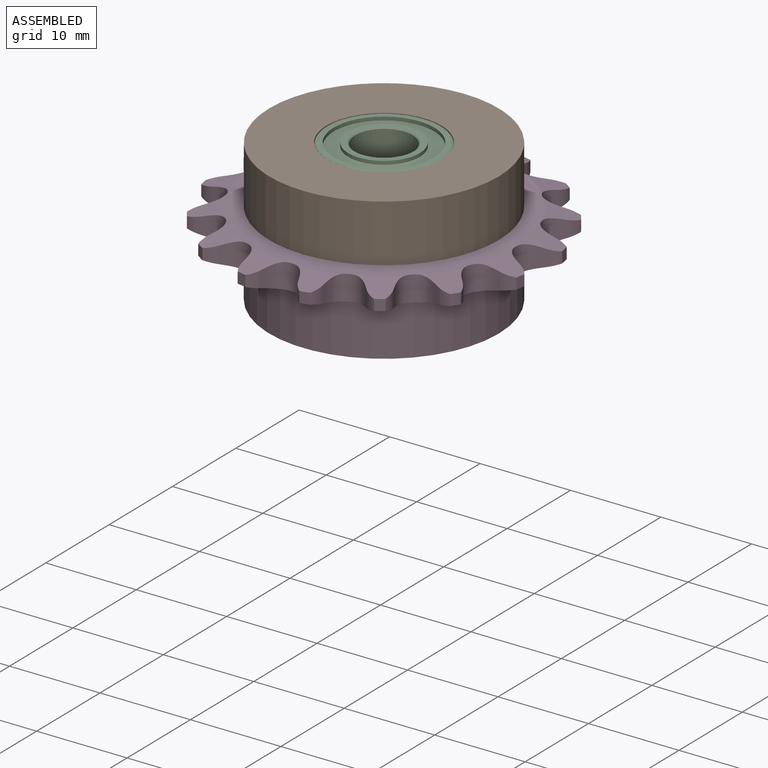
[diagram: assembled view]
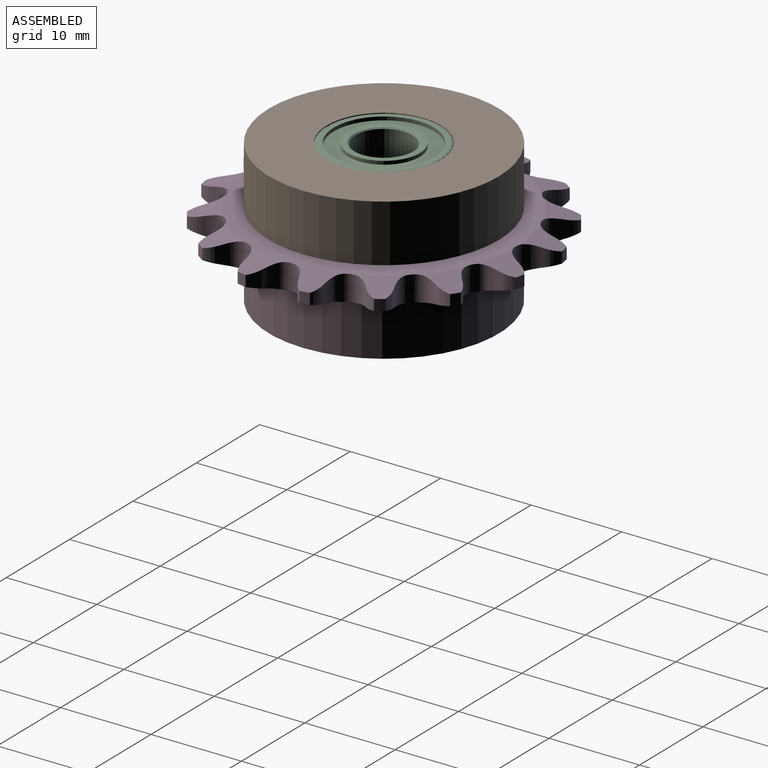
[diagram: assembled view, second angle]
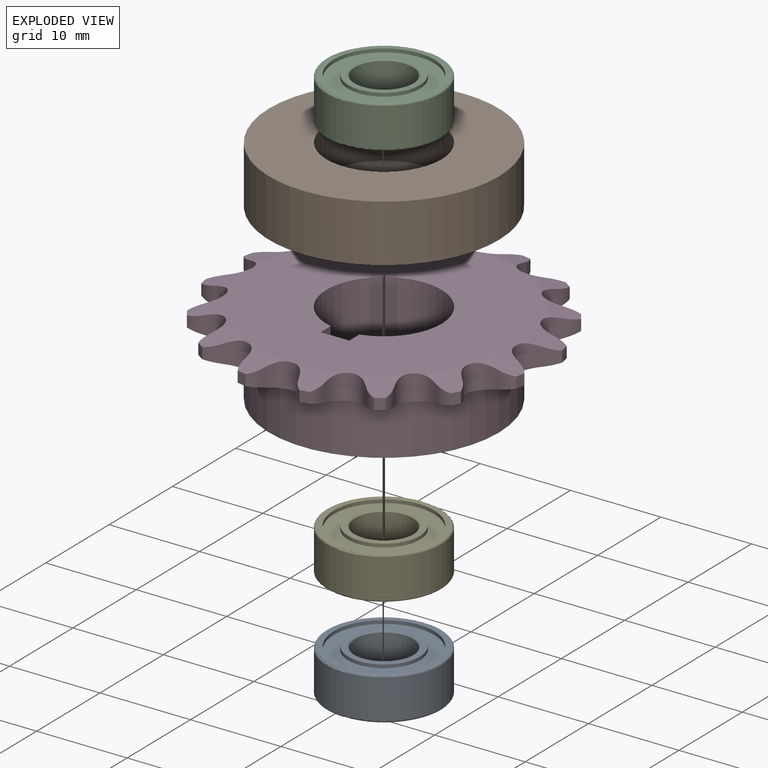
[diagram: exploded view]
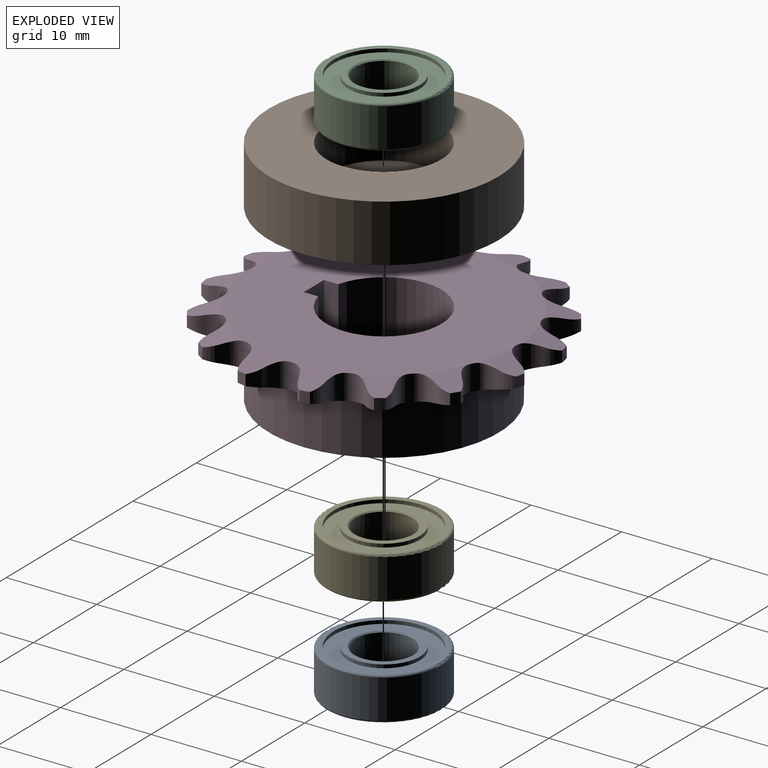
[diagram: exploded view, second angle]
ASSEMBLY  parts=5 mates=4
PART A: 16 faces, bbox 4.8x13.7x13.7 mm
  f0: cone r=3.3mm half-angle=45deg, axis (1,0,0), area 3.7mm2, adj f9,f11
  f1: cone r=3.17mm half-angle=45deg, axis (-1,0,0), area 3.7mm2, adj f9,f10
  f2: torus R=6.11mm, axis (-1,0,0), area 14.7mm2, adj f6,f13
  f3: torus R=6.11mm, axis (1,0,0), area 14.7mm2, adj f6,f14
  f4: cylinder r=3.97mm len=7.94mm, axis (-1,0,0), area 9.5mm2, adj f10,f15
  f5: cylinder r=5.56mm len=11.11mm, axis (-1,0,0), area 13.3mm2, adj f14,f15
  f6: cylinder r=6.35mm len=12.7mm, axis (-1,0,0), area 171mm2, adj f2,f3
  f7: cylinder r=5.56mm len=11.11mm, axis (-1,0,0), area 13.3mm2, adj f12,f13
  f8: cylinder r=3.97mm len=7.94mm, axis (-1,0,0), area 9.5mm2, adj f11,f12
  f9: cylinder r=3.17mm len=6.35mm, axis (-1,0,0), area 89.9mm2, adj f0,f1
  f10: plane 7.94x7.94mm, normal (-1,0,0), area 15.2mm2, adj f1,f4
  f11: plane 7.94x7.94mm, normal (1,0,0), area 15.2mm2, adj f0,f8
  f12: plane 11.11x11.11mm, normal (1,0,0), area 47.5mm2, adj f7,f8
  f13: plane 12.22x12.22mm, normal (1,0,0), area 20.4mm2, adj f2,f7
  f14: plane 12.22x12.22mm, normal (-1,0,0), area 20.4mm2, adj f3,f5
  f15: plane 11.11x11.11mm, normal (-1,0,0), area 47.5mm2, adj f4,f5
PART B: 6 faces, bbox 25.4x25.4x6.4 mm
  f0: cylinder r=3.57mm len=7.14mm, axis (0,0,1), area 35.6mm2, adj f3,f5
  f1: cylinder r=12.7mm len=25.4mm, axis (0,0,-1), area 506.7mm2, adj f2,f3
  f2: plane 25.4x25.4mm, normal (0,0,1), area 380mm2, adj f1,f4
  f3: plane 25.4x25.4mm, normal (0,0,-1), area 466.7mm2, adj f0,f1
  f4: cylinder r=6.35mm len=12.7mm, axis (0,0,1), area 190mm2, adj f2,f5
  f5: plane 12.7x12.7mm, normal (0,0,1), area 86.7mm2, adj f0,f4
PART C: same geometry as A
PART D: 168 faces, bbox 35.7x35.7x9.2 mm
  f0: cylinder r=6.36mm len=12.73mm, axis (0,0,-1), area 337.3mm2, adj f9,f10,f165,f166
  f1: cylinder r=12.7mm len=25.4mm, axis (0,0,-1), area 509.2mm2, adj f10,f11
  f2: cylinder r=1.74mm len=2.79mm, axis (0,0,-1), area 8.9mm2, adj f9,f11,f12,f15,f19,f22,f152,f157
  f3: cylinder r=1.74mm len=2.79mm, axis (0,0,-1), area 8.9mm2, adj f9,f11,f15,f18,f22,f25,f146,f151
  f4: cylinder r=1.74mm len=2.83mm, axis (0,0,-1), area 8.9mm2, adj f9,f11,f18,f21,f25,f28,f140,f145
  f5: cylinder r=1.74mm len=2.79mm, axis (0,0,-1), area 8.9mm2, adj f9,f11,f21,f24,f28,f31,f134,f139
  f6: cylinder r=1.74mm len=2.79mm, axis (0,0,-1), area 8.9mm2, adj f9,f11,f24,f27,f31,f34,f128,f133
  f7: cylinder r=2.72mm len=1.86mm, axis (0,0,-1), area 2.3mm2, adj f36,f38,f43,f104
  f8: cylinder r=2.72mm len=1.86mm, axis (0,0,-1), area 2.3mm2, adj f51,f52,f58,f75
  f9: plane 29.33x29.33mm, normal (0,0,-1), area 543.3mm2, adj f0,f2,f3,f4,f5,f6,f12,f16
  f10: plane 25.4x25.4mm, normal (0,0,1), area 374.9mm2, adj f0,f1,f165,f166,f167
  f11: plane 29.33x29.33mm, normal (0,0,1), area 168.4mm2, adj f1,f2,f3,f4,f5,f6,f13,f15
  f12: cone r=17.86mm half-angle=76deg, axis (0,0,1), area 8.4mm2, adj f2,f9,f14,f155,f156,f157,f158,f159
  f13: cone r=14.68mm half-angle=76deg, axis (0,0,-1), area 8.5mm2, adj f11,f57,f60,f61,f62,f66,f161,f162
  f14: cylinder r=17.86mm len=1.21mm, axis (0,0,-1), area 1.2mm2, adj f12,f19,f155,f160
  f15: cone r=14.68mm half-angle=76deg, axis (0,0,-1), area 8.5mm2, adj f2,f3,f11,f17,f149,f150,f151,f152
  f16: cone r=17.86mm half-angle=76deg, axis (0,0,1), area 8.5mm2, adj f9,f57,f60,f61,f62,f66,f161,f162
  f17: cylinder r=17.86mm len=1.21mm, axis (0,0,-1), area 1.2mm2, adj f15,f22,f149,f154
  f18: cone r=17.86mm half-angle=76deg, axis (0,0,1), area 8.5mm2, adj f3,f4,f9,f20,f143,f144,f145,f146
  f19: cone r=14.68mm half-angle=76deg, axis (0,0,-1), area 8.4mm2, adj f2,f11,f14,f155,f156,f157,f158,f159
  f20: cylinder r=17.86mm len=1.21mm, axis (0,0,-1), area 1.2mm2, adj f18,f25,f143,f148
  f21: cone r=14.68mm half-angle=76deg, axis (0,0,-1), area 8.5mm2, adj f4,f5,f11,f23,f137,f138,f139,f140
  f22: cone r=17.86mm half-angle=76deg, axis (0,0,1), area 8.5mm2, adj f2,f3,f9,f17,f149,f150,f151,f152
  f23: cylinder r=17.86mm len=1.21mm, axis (0,0,-1), area 1.2mm2, adj f21,f28,f137,f142
  f24: cone r=17.86mm half-angle=76deg, axis (0,0,1), area 8.5mm2, adj f5,f6,f9,f26,f131,f132,f133,f134
  f25: cone r=14.68mm half-angle=76deg, axis (0,0,-1), area 8.5mm2, adj f3,f4,f11,f20,f143,f144,f145,f146
  f26: cylinder r=17.86mm len=1.21mm, axis (0,0,-1), area 1.2mm2, adj f24,f31,f131,f136
  f27: cone r=14.68mm half-angle=76deg, axis (0,0,-1), area 8.4mm2, adj f6,f11,f29,f124,f125,f126,f127,f128
  f28: cone r=17.86mm half-angle=76deg, axis (0,0,1), area 8.5mm2, adj f4,f5,f9,f23,f137,f138,f139,f140
  f29: cylinder r=17.86mm len=1.21mm, axis (0,0,-1), area 1.2mm2, adj f27,f34,f124,f130
  f30: cone r=17.86mm half-angle=76deg, axis (0,0,1), area 8.5mm2, adj f9,f32,f117,f118,f119,f120,f121,f122
  f31: cone r=14.68mm half-angle=76deg, axis (0,0,-1), area 8.5mm2, adj f5,f6,f11,f26,f131,f132,f133,f134
  f32: cylinder r=17.86mm len=1.21mm, axis (0,0,-1), area 1.2mm2, adj f30,f37,f117,f123
  f33: cone r=14.68mm half-angle=76deg, axis (0,0,-1), area 8.5mm2, adj f11,f35,f110,f111,f112,f113,f114,f115
  f34: cone r=17.86mm half-angle=76deg, axis (0,0,1), area 8.4mm2, adj f6,f9,f29,f124,f125,f126,f127,f128
  f35: cylinder r=17.86mm len=1.21mm, axis (0,0,-1), area 1.2mm2, adj f33,f40,f110,f116
  f36: cone r=17.86mm half-angle=76deg, axis (0,0,1), area 8.5mm2, adj f7,f9,f38,f104,f105,f106,f107,f108
  f37: cone r=14.68mm half-angle=76deg, axis (0,0,-1), area 8.5mm2, adj f11,f32,f117,f118,f119,f120,f121,f122
  f38: cylinder r=17.86mm len=1.21mm, axis (0,0,-1), area 1.2mm2, adj f7,f36,f43,f109
  f39: cone r=14.68mm half-angle=76deg, axis (0,0,-1), area 8.5mm2, adj f11,f41,f97,f98,f99,f100,f101,f102
  f40: cone r=17.86mm half-angle=76deg, axis (0,0,1), area 8.5mm2, adj f9,f35,f110,f111,f112,f113,f114,f115
  f41: cylinder r=17.86mm len=1.21mm, axis (0,0,-1), area 1.2mm2, adj f39,f46,f97,f103
  f42: cone r=17.86mm half-angle=76deg, axis (0,0,1), area 8.5mm2, adj f9,f44,f90,f91,f92,f93,f94,f95
  f43: cone r=14.68mm half-angle=76deg, axis (0,0,-1), area 8.5mm2, adj f7,f11,f38,f104,f105,f106,f107,f108
  f44: cylinder r=17.86mm len=1.21mm, axis (0,0,-1), area 1.2mm2, adj f42,f49,f90,f96
  f45: cone r=14.68mm half-angle=76deg, axis (0,0,-1), area 8.5mm2, adj f11,f47,f83,f84,f85,f86,f87,f88
  f46: cone r=17.86mm half-angle=76deg, axis (0,0,1), area 8.5mm2, adj f9,f41,f97,f98,f99,f100,f101,f102
  f47: cylinder r=17.86mm len=1.21mm, axis (0,0,-1), area 1.2mm2, adj f45,f53,f83,f89
  f48: cone r=17.86mm half-angle=76deg, axis (0,0,1), area 8.5mm2, adj f9,f50,f76,f77,f78,f79,f80,f81
  f49: cone r=14.68mm half-angle=76deg, axis (0,0,-1), area 8.5mm2, adj f11,f44,f90,f91,f92,f93,f94,f95
  f50: cylinder r=17.86mm len=1.21mm, axis (0,0,-1), area 1.2mm2, adj f48,f56,f76,f82
  f51: cone r=14.68mm half-angle=76deg, axis (0,0,-1), area 8.5mm2, adj f8,f11,f52,f70,f71,f72,f73,f74
  f52: cylinder r=17.86mm len=1.21mm, axis (0,0,-1), area 1.2mm2, adj f8,f51,f58,f70
  f53: cone r=17.86mm half-angle=76deg, axis (0,0,1), area 8.5mm2, adj f9,f47,f83,f84,f85,f86,f87,f88
  f54: cylinder r=17.86mm len=1.21mm, axis (0,0,-1), area 1.2mm2, adj f55,f59,f63,f69
  f55: cone r=17.86mm half-angle=76deg, axis (0,0,1), area 8.5mm2, adj f9,f54,f63,f64,f65,f66,f67,f68
  f56: cone r=14.68mm half-angle=76deg, axis (0,0,-1), area 8.5mm2, adj f11,f50,f76,f77,f78,f79,f80,f81
  f57: cylinder r=17.86mm len=1.21mm, axis (0,0,-1), area 1.2mm2, adj f13,f16,f62,f161
  f58: cone r=17.86mm half-angle=76deg, axis (0,0,1), area 8.5mm2, adj f8,f9,f52,f70,f71,f72,f73,f74
  f59: cone r=14.68mm half-angle=76deg, axis (0,0,-1), area 8.5mm2, adj f11,f54,f63,f64,f65,f66,f67,f68
  f60: cylinder r=4.28mm len=2.47mm, axis (0,0,-1), area 2.1mm2, adj f13,f16,f61,f66
  f61: plane 2.04x0.35mm, normal (-0.92,0.39,0), area 0.7mm2, adj f13,f16,f60,f62
  f62: cylinder r=2.72mm len=1.86mm, axis (0,0,-1), area 2.4mm2, adj f13,f16,f57,f61
  f63: cylinder r=2.72mm len=1.86mm, axis (0,0,-1), area 2.4mm2, adj f54,f55,f59,f64
  f64: plane 2.04x0.35mm, normal (0.92,0.39,0), area 0.7mm2, adj f55,f59,f63,f65
  f65: cylinder r=4.28mm len=2.47mm, axis (0,0,-1), area 2.1mm2, adj f55,f59,f64,f66
  f66: cylinder r=1.74mm len=2.83mm, axis (0,0,-1), area 8.9mm2, adj f9,f11,f13,f16,f55,f59,f60,f65
  f67: cylinder r=4.28mm len=2.47mm, axis (0,0,-1), area 2.1mm2, adj f55,f59,f68,f73
  f68: plane 2.04x0.38mm, normal (-1,0.01,0), area 0.7mm2, adj f55,f59,f67,f69
  f69: cylinder r=2.72mm len=1.86mm, axis (0,0,-1), area 2.4mm2, adj f54,f55,f59,f68
  f70: cylinder r=2.72mm len=1.86mm, axis (0,0,-1), area 2.4mm2, adj f51,f52,f58,f71
  f71: plane 2.04x0.27mm, normal (0.7,0.71,0), area 0.7mm2, adj f51,f58,f70,f72
  f72: cylinder r=4.28mm len=2.47mm, axis (0,0,-1), area 2.1mm2, adj f51,f58,f71,f73
  f73: cylinder r=1.74mm len=2.79mm, axis (0,0,-1), area 8.9mm2, adj f9,f11,f51,f55,f58,f59,f67,f72
  f74: cylinder r=4.28mm len=2.47mm, axis (0,0,-1), area 2.1mm2, adj f51,f58,f75,f79
  f75: plane 2.04x0.35mm, normal (-0.93,-0.37,0), area 0.7mm2, adj f8,f51,f58,f74
  f76: cylinder r=2.72mm len=1.86mm, axis (0,0,-1), area 2.4mm2, adj f48,f50,f56,f77
  f77: plane 2.04x0.35mm, normal (0.37,0.93,0), area 0.7mm2, adj f48,f56,f76,f78
  f78: cylinder r=4.28mm len=2.47mm, axis (0,0,-1), area 2.1mm2, adj f48,f56,f77,f79
  f79: cylinder r=1.74mm len=2.79mm, axis (0,0,-1), area 8.9mm2, adj f9,f11,f48,f51,f56,f58,f74,f78
  f80: cylinder r=4.28mm len=2.47mm, axis (0,0,-1), area 2.1mm2, adj f48,f56,f81,f86
  f81: plane 2.04x0.27mm, normal (-0.71,-0.7,0), area 0.7mm2, adj f48,f56,f80,f82
  f82: cylinder r=2.72mm len=1.86mm, axis (0,0,-1), area 2.4mm2, adj f48,f50,f56,f81
  f83: cylinder r=2.72mm len=1.86mm, axis (0,0,-1), area 2.4mm2, adj f45,f47,f53,f84
  f84: plane 2.04x0.38mm, normal (-0.01,1,0), area 0.7mm2, adj f45,f53,f83,f85
  f85: cylinder r=4.28mm len=2.47mm, axis (0,0,-1), area 2.1mm2, adj f45,f53,f84,f86
  f86: cylinder r=1.74mm len=2.79mm, axis (0,0,-1), area 8.9mm2, adj f9,f11,f45,f48,f53,f56,f80,f85
  f87: cylinder r=4.28mm len=2.47mm, axis (0,0,-1), area 2.1mm2, adj f45,f53,f88,f93
  f88: plane 2.04x0.35mm, normal (-0.39,-0.92,0), area 0.7mm2, adj f45,f53,f87,f89
  f89: cylinder r=2.72mm len=1.86mm, axis (0,0,-1), area 2.4mm2, adj f45,f47,f53,f88
  f90: cylinder r=2.72mm len=1.86mm, axis (0,0,-1), area 2.4mm2, adj f42,f44,f49,f91
  f91: plane 2.04x0.35mm, normal (-0.39,0.92,0), area 0.7mm2, adj f42,f49,f90,f92
  f92: cylinder r=4.28mm len=2.47mm, axis (0,0,-1), area 2.1mm2, adj f42,f49,f91,f93
  f93: cylinder r=1.74mm len=2.83mm, axis (0,0,-1), area 8.9mm2, adj f9,f11,f42,f45,f49,f53,f87,f92
  f94: cylinder r=4.28mm len=2.47mm, axis (0,0,-1), area 2.1mm2, adj f42,f49,f95,f100
  f95: plane 2.04x0.38mm, normal (-0.01,-1,0), area 0.7mm2, adj f42,f49,f94,f96
  f96: cylinder r=2.72mm len=1.86mm, axis (0,0,-1), area 2.4mm2, adj f42,f44,f49,f95
  f97: cylinder r=2.72mm len=1.86mm, axis (0,0,-1), area 2.4mm2, adj f39,f41,f46,f98
  f98: plane 2.04x0.27mm, normal (-0.71,0.7,0), area 0.7mm2, adj f39,f46,f97,f99
  f99: cylinder r=4.28mm len=2.47mm, axis (0,0,-1), area 2.1mm2, adj f39,f46,f98,f100
  f100: cylinder r=1.74mm len=2.79mm, axis (0,0,-1), area 8.9mm2, adj f9,f11,f39,f42,f46,f49,f94,f99
  f101: cylinder r=4.28mm len=2.47mm, axis (0,0,-1), area 2.1mm2, adj f39,f46,f102,f106
  f102: plane 2.04x0.35mm, normal (0.37,-0.93,0), area 0.7mm2, adj f39,f46,f101,f103
  f103: cylinder r=2.72mm len=1.86mm, axis (0,0,-1), area 2.4mm2, adj f39,f41,f46,f102
  f104: plane 2.04x0.35mm, normal (-0.93,0.37,0), area 0.7mm2, adj f7,f36,f43,f105
  f105: cylinder r=4.28mm len=2.47mm, axis (0,0,-1), area 2.1mm2, adj f36,f43,f104,f106
  f106: cylinder r=1.74mm len=2.79mm, axis (0,0,-1), area 8.9mm2, adj f9,f11,f36,f39,f43,f46,f101,f105
  f107: cylinder r=4.28mm len=2.47mm, axis (0,0,-1), area 2.1mm2, adj f36,f43,f108,f113
  f108: plane 2.04x0.27mm, normal (0.7,-0.71,0), area 0.7mm2, adj f36,f43,f107,f109
  f109: cylinder r=2.72mm len=1.86mm, axis (0,0,-1), area 2.4mm2, adj f36,f38,f43,f108
  f110: cylinder r=2.72mm len=1.86mm, axis (0,0,-1), area 2.4mm2, adj f33,f35,f40,f111
  f111: plane 2.04x0.38mm, normal (-1,-0.01,0), area 0.7mm2, adj f33,f40,f110,f112
  f112: cylinder r=4.28mm len=2.47mm, axis (0,0,-1), area 2.1mm2, adj f33,f40,f111,f113
  f113: cylinder r=1.74mm len=2.79mm, axis (0,0,-1), area 8.9mm2, adj f9,f11,f33,f36,f40,f43,f107,f112
  f114: cylinder r=4.28mm len=2.47mm, axis (0,0,-1), area 2.1mm2, adj f33,f40,f115,f120
  f115: plane 2.04x0.35mm, normal (0.92,-0.39,0), area 0.7mm2, adj f33,f40,f114,f116
  f116: cylinder r=2.72mm len=1.86mm, axis (0,0,-1), area 2.4mm2, adj f33,f35,f40,f115
  f117: cylinder r=2.72mm len=1.86mm, axis (0,0,-1), area 2.4mm2, adj f30,f32,f37,f118
  f118: plane 2.04x0.35mm, normal (-0.92,-0.39,0), area 0.7mm2, adj f30,f37,f117,f119
  f119: cylinder r=4.28mm len=2.47mm, axis (0,0,-1), area 2.1mm2, adj f30,f37,f118,f120
  f120: cylinder r=1.74mm len=2.83mm, axis (0,0,-1), area 8.9mm2, adj f9,f11,f30,f33,f37,f40,f114,f119
  f121: cylinder r=4.28mm len=2.47mm, axis (0,0,-1), area 2.1mm2, adj f30,f37,f122,f127
  f122: plane 2.04x0.38mm, normal (1,-0.01,0), area 0.7mm2, adj f30,f37,f121,f123
  f123: cylinder r=2.72mm len=1.86mm, axis (0,0,-1), area 2.4mm2, adj f30,f32,f37,f122
  f124: cylinder r=2.72mm len=1.86mm, axis (0,0,-1), area 2.4mm2, adj f27,f29,f34,f125
  f125: plane 2.04x0.27mm, normal (-0.7,-0.71,0), area 0.7mm2, adj f27,f34,f124,f126
  f126: cylinder r=4.28mm len=2.47mm, axis (0,0,-1), area 2.1mm2, adj f27,f34,f125,f127
  f127: cylinder r=1.74mm len=2.79mm, axis (0,0,-1), area 8.9mm2, adj f9,f11,f27,f30,f34,f37,f121,f126
  f128: cylinder r=4.28mm len=2.47mm, axis (0,0,-1), area 2.1mm2, adj f6,f27,f34,f129
  f129: plane 2.04x0.35mm, normal (0.93,0.37,0), area 0.7mm2, adj f27,f34,f128,f130
  f130: cylinder r=2.72mm len=1.86mm, axis (0,0,-1), area 2.4mm2, adj f27,f29,f34,f129
  f131: cylinder r=2.72mm len=1.86mm, axis (0,0,-1), area 2.4mm2, adj f24,f26,f31,f132
  f132: plane 2.04x0.35mm, normal (-0.37,-0.93,0), area 0.7mm2, adj f24,f31,f131,f133
  f133: cylinder r=4.28mm len=2.47mm, axis (0,0,-1), area 2.1mm2, adj f6,f24,f31,f132
  f134: cylinder r=4.28mm len=2.47mm, axis (0,0,-1), area 2.1mm2, adj f5,f24,f31,f135
  f135: plane 2.04x0.27mm, normal (0.71,0.7,0), area 0.7mm2, adj f24,f31,f134,f136
  f136: cylinder r=2.72mm len=1.86mm, axis (0,0,-1), area 2.4mm2, adj f24,f26,f31,f135
  f137: cylinder r=2.72mm len=1.86mm, axis (0,0,-1), area 2.4mm2, adj f21,f23,f28,f138
  f138: plane 2.04x0.38mm, normal (0.01,-1,0), area 0.7mm2, adj f21,f28,f137,f139
  f139: cylinder r=4.28mm len=2.47mm, axis (0,0,-1), area 2.1mm2, adj f5,f21,f28,f138
  f140: cylinder r=4.28mm len=2.47mm, axis (0,0,-1), area 2.1mm2, adj f4,f21,f28,f141
  f141: plane 2.04x0.35mm, normal (0.39,0.92,0), area 0.7mm2, adj f21,f28,f140,f142
  f142: cylinder r=2.72mm len=1.86mm, axis (0,0,-1), area 2.4mm2, adj f21,f23,f28,f141
  f143: cylinder r=2.72mm len=1.86mm, axis (0,0,-1), area 2.4mm2, adj f18,f20,f25,f144
  f144: plane 2.04x0.35mm, normal (0.39,-0.92,0), area 0.7mm2, adj f18,f25,f143,f145
  f145: cylinder r=4.28mm len=2.47mm, axis (0,0,-1), area 2.1mm2, adj f4,f18,f25,f144
  f146: cylinder r=4.28mm len=2.47mm, axis (0,0,-1), area 2.1mm2, adj f3,f18,f25,f147
  f147: plane 2.04x0.38mm, normal (0.01,1,0), area 0.7mm2, adj f18,f25,f146,f148
  f148: cylinder r=2.72mm len=1.86mm, axis (0,0,-1), area 2.4mm2, adj f18,f20,f25,f147
  f149: cylinder r=2.72mm len=1.86mm, axis (0,0,-1), area 2.4mm2, adj f15,f17,f22,f150
  f150: plane 2.04x0.27mm, normal (0.71,-0.7,0), area 0.7mm2, adj f15,f22,f149,f151
  f151: cylinder r=4.28mm len=2.47mm, axis (0,0,-1), area 2.1mm2, adj f3,f15,f22,f150
  f152: cylinder r=4.28mm len=2.47mm, axis (0,0,-1), area 2.1mm2, adj f2,f15,f22,f153
  f153: plane 2.04x0.35mm, normal (-0.37,0.93,0), area 0.7mm2, adj f15,f22,f152,f154
  f154: cylinder r=2.72mm len=1.86mm, axis (0,0,-1), area 2.4mm2, adj f15,f17,f22,f153
  f155: cylinder r=2.72mm len=1.86mm, axis (0,0,-1), area 2.4mm2, adj f12,f14,f19,f156
  f156: plane 2.04x0.35mm, normal (0.93,-0.37,0), area 0.7mm2, adj f12,f19,f155,f157
  f157: cylinder r=4.28mm len=2.47mm, axis (0,0,-1), area 2.1mm2, adj f2,f12,f19,f156
  f158: cylinder r=4.28mm len=2.47mm, axis (0,0,-1), area 2.1mm2, adj f12,f19,f159,f164
  f159: plane 2.04x0.27mm, normal (-0.7,0.71,0), area 0.7mm2, adj f12,f19,f158,f160
  f160: cylinder r=2.72mm len=1.86mm, axis (0,0,-1), area 2.4mm2, adj f12,f14,f19,f159
  f161: cylinder r=2.72mm len=1.86mm, axis (0,0,-1), area 2.4mm2, adj f13,f16,f57,f162
  f162: plane 2.04x0.38mm, normal (1,0.01,0), area 0.7mm2, adj f13,f16,f161,f163
  f163: cylinder r=4.28mm len=2.47mm, axis (0,0,-1), area 2.1mm2, adj f13,f16,f162,f164
  f164: cylinder r=1.74mm len=2.79mm, axis (0,0,-1), area 8.9mm2, adj f9,f11,f12,f13,f16,f19,f158,f163
  f165: plane 9.18x1.59mm, normal (1,0,0), area 14.6mm2, adj f0,f9,f10,f167
  f166: plane 9.18x1.59mm, normal (-1,0,0), area 14.6mm2, adj f0,f9,f10,f167
  f167: plane 9.18x3.18mm, normal (0,-1,0), area 29.2mm2, adj f9,f10,f165,f166
PART E: same geometry as A
PLACE A rot(axis=(0,-1,0),90deg) t=(2.13,-26.75,-9.87)mm
PLACE B t=(2.13,-26.75,-11.9)mm
PLACE C rot(axis=(0,-1,0),90deg) t=(2.13,-26.75,1.25)mm
PLACE D rot(axis=(1,0,0),180deg) t=(2.13,-26.75,-2.9)mm
PLACE E rot(axis=(0.71,0,-0.71),180deg) t=(2.13,-26.75,-5.1)mm
MATE fastened D.f0 <-> E.f0  axis (0,0,1) through (2.13,-26.75,-7.48)mm
MATE fastened B.f0 <-> E.f0  axis (0,0,-1) through (2.13,-26.75,-2.72)mm
MATE fastened C.f0 <-> B.f4  axis (0,0,-1) through (2.13,-26.75,-1.13)mm
MATE fastened A.f0 <-> D.f0  axis (0,0,1) through (2.13,-26.75,-7.48)mm
